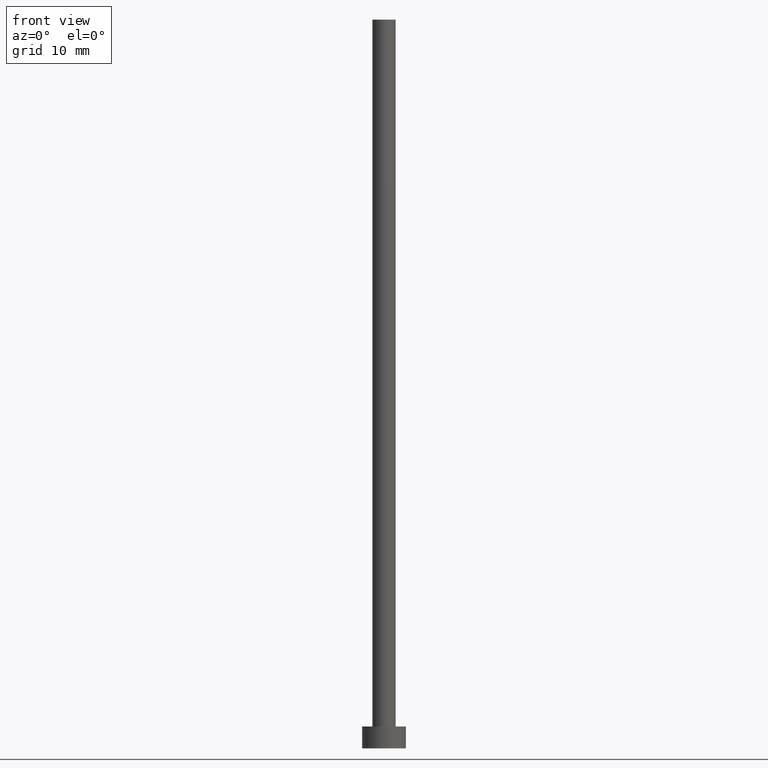
[diagram: clean part render]
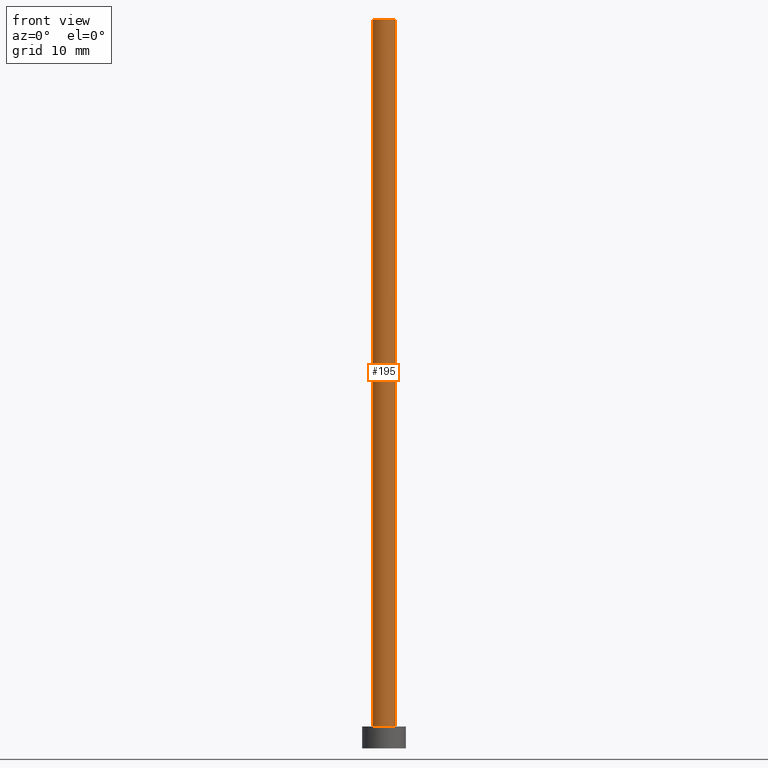
[diagram: same view with one face highlighted and labeled with its STEP entity id]
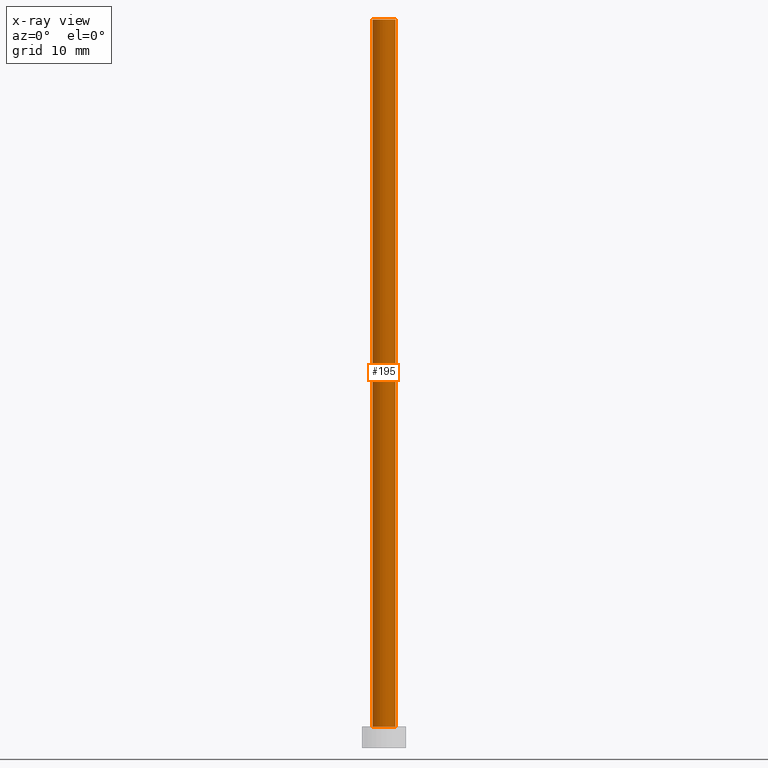
[diagram: x-ray of the same camera — body ghosted, the highlighted face saturated]
A machine part, front view. The second image highlights one B-rep face of the part: STEP entity #195.
The next image is the same camera in x-ray: the body ghosted, the highlighted face saturated — about 0% of this face is hidden behind the body in this view.
In plain terms, the highlighted cylindrical surface (edge-blend (fillet) strip) has radius 1.6 mm, axis along (-0, -0, -1).
Its self-contained STEP definition (entity closure, byte-faithful):
#1 = EDGE_CURVE ( 'NONE', #93, #252, #37, .T. ) ;
#10 = CARTESIAN_POINT ( 'NONE',  ( 1.600000000000000089, 1.959434878635764737E-16, 100.0000000000000000 ) ) ;
#15 = ORIENTED_EDGE ( 'NONE', *, *, #1, .T. ) ;
#23 = DIRECTION ( 'NONE',  ( 0.000000000000000000, 0.000000000000000000, 1.000000000000000000 ) ) ;
#27 = CARTESIAN_POINT ( 'NONE',  ( 0.000000000000000000, 0.000000000000000000, 100.0000000000000000 ) ) ;
#28 = DIRECTION ( 'NONE',  ( 1.000000000000000000, 0.000000000000000000, 0.000000000000000000 ) ) ;
#37 = LINE ( 'NONE', #177, #135 ) ;
#39 = CARTESIAN_POINT ( 'NONE',  ( 1.600000000000000089, 1.959434878635764737E-16, 100.0000000000000000 ) ) ;
#41 = EDGE_CURVE ( 'NONE', #252, #149, #111, .T. ) ;
#56 = EDGE_LOOP ( 'NONE', ( #146, #96, #15, #71 ) ) ;
#63 = AXIS2_PLACEMENT_3D ( 'NONE', #27, #160, #28 ) ;
#71 = ORIENTED_EDGE ( 'NONE', *, *, #41, .T. ) ;
#77 = DIRECTION ( 'NONE',  ( -0.000000000000000000, -0.000000000000000000, -1.000000000000000000 ) ) ;
#93 = VERTEX_POINT ( 'NONE', #240 ) ;
#95 = EDGE_CURVE ( 'NONE', #208, #149, #214, .T. ) ;
#96 = ORIENTED_EDGE ( 'NONE', *, *, #213, .F. ) ;
#97 = DIRECTION ( 'NONE',  ( 1.000000000000000000, 0.000000000000000000, 0.000000000000000000 ) ) ;
#104 = DIRECTION ( 'NONE',  ( -0.000000000000000000, -0.000000000000000000, -1.000000000000000000 ) ) ;
#109 = FACE_OUTER_BOUND ( 'NONE', #56, .T. ) ;
#111 = CIRCLE ( 'NONE', #227, 1.600000000000000089 ) ;
#117 = CARTESIAN_POINT ( 'NONE',  ( 0.000000000000000000, 0.000000000000000000, 3.000000000000000000 ) ) ;
#135 = VECTOR ( 'NONE', #77, 1000.000000000000000 ) ;
#137 = CARTESIAN_POINT ( 'NONE',  ( 1.600000000000000089, 1.959434878635764737E-16, 3.000000000000000000 ) ) ;
#145 = CARTESIAN_POINT ( 'NONE',  ( -1.600000000000000089, 0.000000000000000000, 3.000000000000000000 ) ) ;
#146 = ORIENTED_EDGE ( 'NONE', *, *, #95, .F. ) ;
#149 = VERTEX_POINT ( 'NONE', #137 ) ;
#156 = DIRECTION ( 'NONE',  ( -0.000000000000000000, -0.000000000000000000, -1.000000000000000000 ) ) ;
#158 = AXIS2_PLACEMENT_3D ( 'NONE', #182, #104, #204 ) ;
#160 = DIRECTION ( 'NONE',  ( 0.000000000000000000, 0.000000000000000000, 1.000000000000000000 ) ) ;
#177 = CARTESIAN_POINT ( 'NONE',  ( -1.600000000000000089, 0.000000000000000000, 100.0000000000000000 ) ) ;
#182 = CARTESIAN_POINT ( 'NONE',  ( 0.000000000000000000, 0.000000000000000000, 100.0000000000000000 ) ) ;
#186 = VECTOR ( 'NONE', #156, 1000.000000000000000 ) ;
#195 = ADVANCED_FACE ( 'NONE', ( #109 ), #244, .T. ) ;
#204 = DIRECTION ( 'NONE',  ( -1.000000000000000000, 0.000000000000000000, 0.000000000000000000 ) ) ;
#208 = VERTEX_POINT ( 'NONE', #10 ) ;
#213 = EDGE_CURVE ( 'NONE', #93, #208, #234, .T. ) ;
#214 = LINE ( 'NONE', #39, #186 ) ;
#227 = AXIS2_PLACEMENT_3D ( 'NONE', #117, #23, #97 ) ;
#234 = CIRCLE ( 'NONE', #63, 1.600000000000000089 ) ;
#240 = CARTESIAN_POINT ( 'NONE',  ( -1.600000000000000089, 0.000000000000000000, 100.0000000000000000 ) ) ;
#244 = CYLINDRICAL_SURFACE ( 'NONE', #158, 1.600000000000000089 ) ;
#252 = VERTEX_POINT ( 'NONE', #145 ) ;